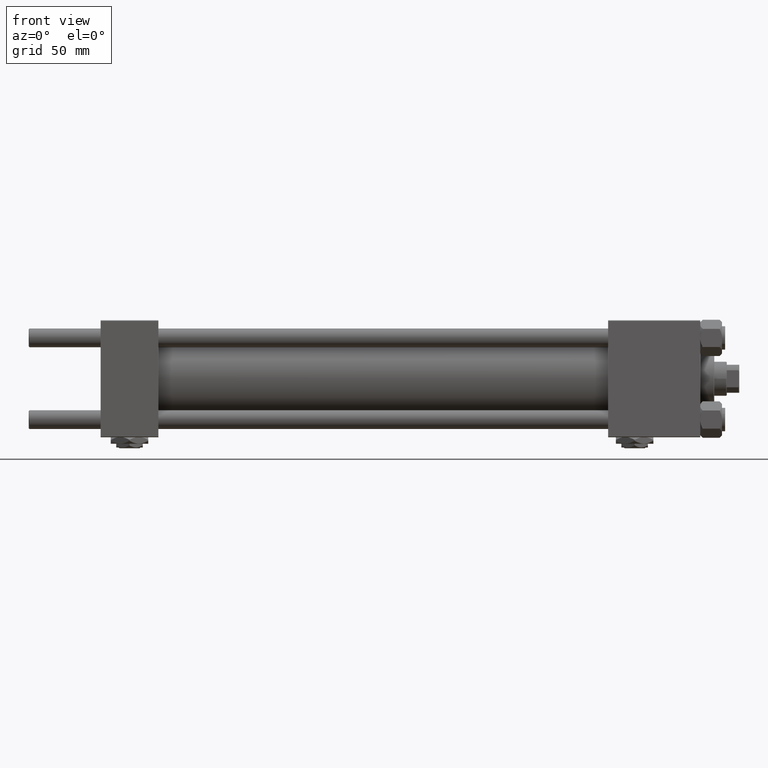
[diagram: clean part render]
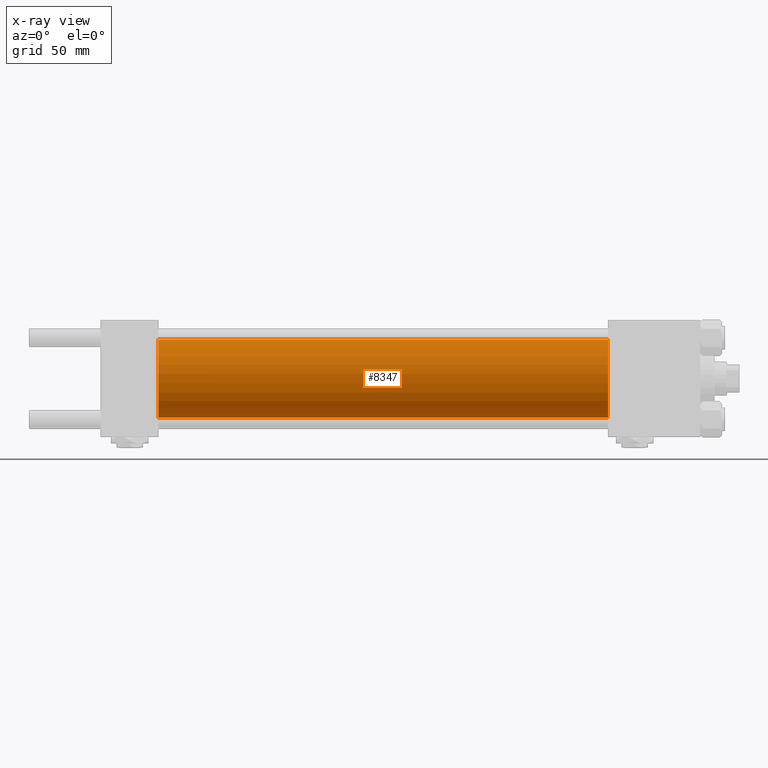
[diagram: x-ray — body ghosted, one internal face saturated and labeled with its STEP entity id]
A machine part, front view, then the same camera in x-ray: the body is ghosted and one INTERNAL B-rep face — a face not visible from any outside direction — is saturated and labeled: STEP entity #8347.
In plain terms, the highlighted cylindrical surface (partial cylindrical patch) has radius 25 mm, axis along (-1, -0, -0).
Its self-contained STEP definition (entity closure, byte-faithful):
#491 = DIRECTION ( 'NONE',  ( 1.000000000000000000, 0.000000000000000000, 0.000000000000000000 ) ) ;
#1904 = VERTEX_POINT ( 'NONE', #18649 ) ;
#1969 = AXIS2_PLACEMENT_3D ( 'NONE', #36395, #491, #17001 ) ;
#2938 = DIRECTION ( 'NONE',  ( -1.000000000000000000, -0.000000000000000000, -0.000000000000000000 ) ) ;
#4445 = VECTOR ( 'NONE', #6330, 1000.000000000000000 ) ;
#5314 = AXIS2_PLACEMENT_3D ( 'NONE', #40393, #12640, #28612 ) ;
#6330 = DIRECTION ( 'NONE',  ( -1.000000000000000000, -0.000000000000000000, -0.000000000000000000 ) ) ;
#6960 = CIRCLE ( 'NONE', #5314, 25.00000000000000000 ) ;
#7925 = CARTESIAN_POINT ( 'NONE',  ( 324.9999999999999432, 3.061616997868383043E-15, -25.00000000000000000 ) ) ;
#8092 = LINE ( 'NONE', #8352, #46590 ) ;
#8347 = ADVANCED_FACE ( 'NONE', ( #19699 ), #34665, .F. ) ;
#8352 = CARTESIAN_POINT ( 'NONE',  ( 324.9999999999999432, 3.061616997868383043E-15, -25.00000000000000000 ) ) ;
#11979 = ORIENTED_EDGE ( 'NONE', *, *, #38929, .F. ) ;
#12640 = DIRECTION ( 'NONE',  ( 1.000000000000000000, 0.000000000000000000, 0.000000000000000000 ) ) ;
#17001 = DIRECTION ( 'NONE',  ( 0.000000000000000000, 0.000000000000000000, -1.000000000000000000 ) ) ;
#18649 = CARTESIAN_POINT ( 'NONE',  ( 37.00000000000000000, 3.061616997868383043E-15, -25.00000000000000000 ) ) ;
#19699 = FACE_OUTER_BOUND ( 'NONE', #51681, .T. ) ;
#19957 = VERTEX_POINT ( 'NONE', #45278 ) ;
#22151 = CARTESIAN_POINT ( 'NONE',  ( 37.00000000000000000, 0.000000000000000000, 25.00000000000000000 ) ) ;
#22865 = DIRECTION ( 'NONE',  ( 0.000000000000000000, 0.000000000000000000, 1.000000000000000000 ) ) ;
#27036 = CARTESIAN_POINT ( 'NONE',  ( 324.9999999999999432, 0.000000000000000000, 0.000000000000000000 ) ) ;
#28612 = DIRECTION ( 'NONE',  ( 0.000000000000000000, 0.000000000000000000, -1.000000000000000000 ) ) ;
#29088 = AXIS2_PLACEMENT_3D ( 'NONE', #27036, #2938, #22865 ) ;
#31270 = VERTEX_POINT ( 'NONE', #7925 ) ;
#31476 = ORIENTED_EDGE ( 'NONE', *, *, #35121, .F. ) ;
#34665 = CYLINDRICAL_SURFACE ( 'NONE', #29088, 25.00000000000000000 ) ;
#35032 = EDGE_CURVE ( 'NONE', #19957, #31270, #6960, .T. ) ;
#35121 = EDGE_CURVE ( 'NONE', #19957, #39174, #37772, .T. ) ;
#35627 = DIRECTION ( 'NONE',  ( -1.000000000000000000, -0.000000000000000000, -0.000000000000000000 ) ) ;
#36395 = CARTESIAN_POINT ( 'NONE',  ( 37.00000000000000000, 0.000000000000000000, 0.000000000000000000 ) ) ;
#37137 = CIRCLE ( 'NONE', #1969, 25.00000000000000000 ) ;
#37772 = LINE ( 'NONE', #41684, #4445 ) ;
#38929 = EDGE_CURVE ( 'NONE', #39174, #1904, #37137, .T. ) ;
#39174 = VERTEX_POINT ( 'NONE', #22151 ) ;
#40393 = CARTESIAN_POINT ( 'NONE',  ( 324.9999999999999432, 0.000000000000000000, 0.000000000000000000 ) ) ;
#41684 = CARTESIAN_POINT ( 'NONE',  ( 324.9999999999999432, 0.000000000000000000, 25.00000000000000000 ) ) ;
#41721 = ORIENTED_EDGE ( 'NONE', *, *, #48570, .T. ) ;
#42390 = ORIENTED_EDGE ( 'NONE', *, *, #35032, .T. ) ;
#45278 = CARTESIAN_POINT ( 'NONE',  ( 324.9999999999999432, 0.000000000000000000, 25.00000000000000000 ) ) ;
#46590 = VECTOR ( 'NONE', #35627, 1000.000000000000000 ) ;
#48570 = EDGE_CURVE ( 'NONE', #31270, #1904, #8092, .T. ) ;
#51681 = EDGE_LOOP ( 'NONE', ( #42390, #41721, #11979, #31476 ) ) ;